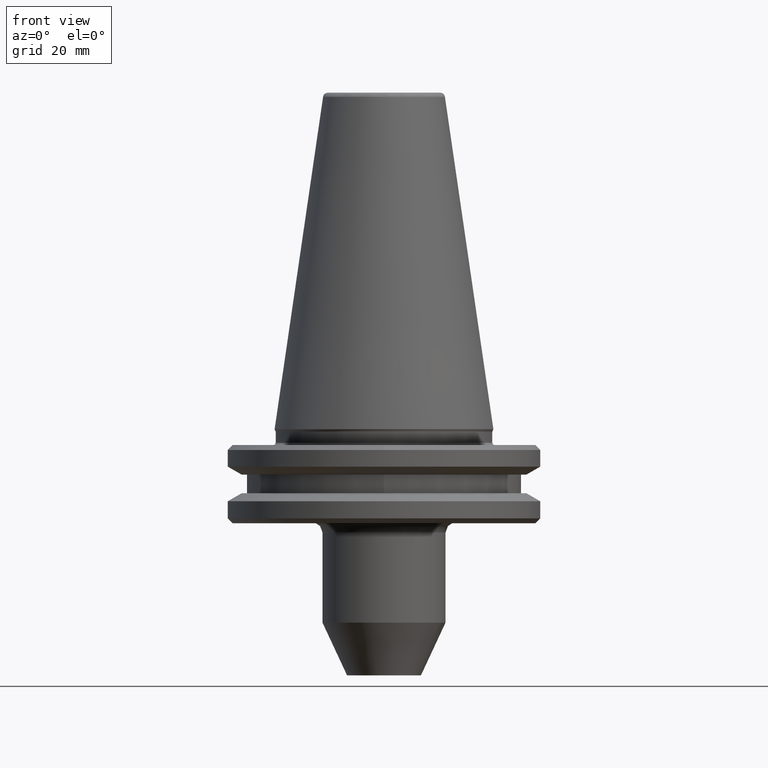
[diagram: clean part render]
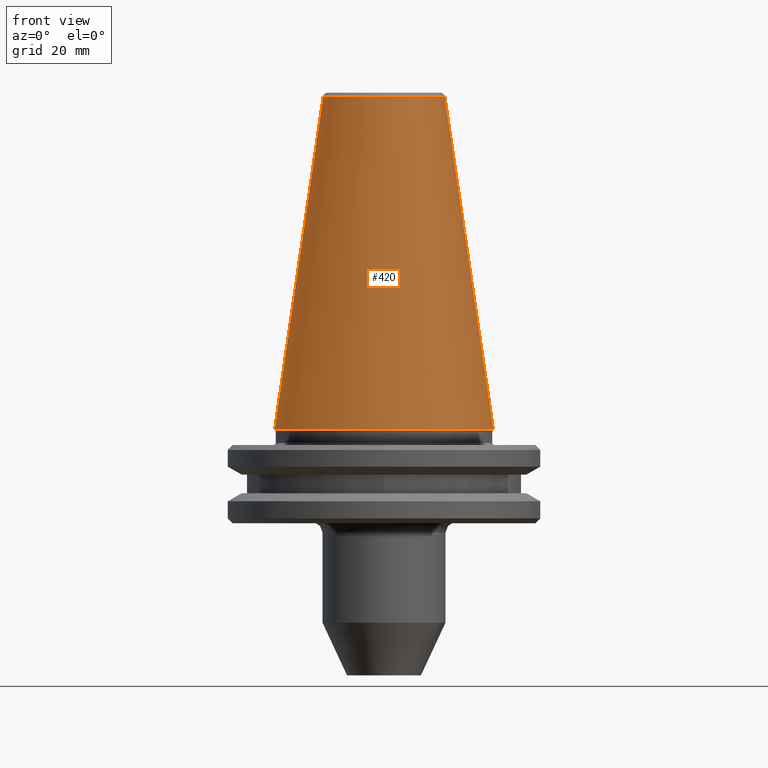
[diagram: same view with one face highlighted and labeled with its STEP entity id]
A machine part, front view. The second image highlights one B-rep face of the part: STEP entity #420.
In plain terms, the highlighted conical surface has half-angle 8.297 deg.
Its self-contained STEP definition (entity closure, byte-faithful):
#19 = VERTEX_POINT ( 'NONE', #299 ) ;
#37 = VERTEX_POINT ( 'NONE', #1121 ) ;
#40 = EDGE_LOOP ( 'NONE', ( #315, #890, #592, #201 ) ) ;
#67 = CARTESIAN_POINT ( 'NONE',  ( 12.37469537590452100, -2.855354478374084000E-009, 67.54430822699950500 ) ) ;
#137 = VECTOR ( 'NONE', #869, 1000.000000000000100 ) ;
#139 = AXIS2_PLACEMENT_3D ( 'NONE', #1277, #1270, #1268 ) ;
#148 = EDGE_CURVE ( 'NONE', #351, #37, #1304, .T. ) ;
#151 = DIRECTION ( 'NONE',  ( 0.0000000000000000000, 0.0000000000000000000, -1.000000000000000000 ) ) ;
#196 = EDGE_CURVE ( 'NONE', #351, #352, #1193, .T. ) ;
#201 = ORIENTED_EDGE ( 'NONE', *, *, #675, .T. ) ;
#234 = CARTESIAN_POINT ( 'NONE',  ( -12.37469537590595100, -5.555843992514513000E-010, 67.54430822698967100 ) ) ;
#237 = FACE_OUTER_BOUND ( 'NONE', #40, .T. ) ;
#262 = CIRCLE ( 'NONE', #292, 22.22499999999999400 ) ;
#292 = AXIS2_PLACEMENT_3D ( 'NONE', #736, #733, #727 ) ;
#299 = CARTESIAN_POINT ( 'NONE',  ( -22.22499999999999800, 2.721777511104992500E-015, 0.0000000000000000000 ) ) ;
#315 = ORIENTED_EDGE ( 'NONE', *, *, #148, .F. ) ;
#351 = VERTEX_POINT ( 'NONE', #67 ) ;
#352 = VERTEX_POINT ( 'NONE', #234 ) ;
#381 = AXIS2_PLACEMENT_3D ( 'NONE', #551, #151, #1300 ) ;
#420 = ADVANCED_FACE ( 'NONE', ( #237 ), #968, .T. ) ;
#543 = DIRECTION ( 'NONE',  ( 0.1443082272694599400, 1.767266086161729200E-017, -0.9895327864918603800 ) ) ;
#551 = CARTESIAN_POINT ( 'NONE',  ( 0.0000000000000000000, 0.0000000000000000000, 67.54430822701309000 ) ) ;
#565 = EDGE_CURVE ( 'NONE', #352, #19, #880, .T. ) ;
#592 = ORIENTED_EDGE ( 'NONE', *, *, #565, .T. ) ;
#675 = EDGE_CURVE ( 'NONE', #19, #37, #262, .T. ) ;
#727 = DIRECTION ( 'NONE',  ( -1.000000000000000000, 0.0000000000000000000, 0.0000000000000000000 ) ) ;
#733 = DIRECTION ( 'NONE',  ( -0.0000000000000000000, -0.0000000000000000000, 1.000000000000000000 ) ) ;
#736 = CARTESIAN_POINT ( 'NONE',  ( 0.0000000000000000000, 0.0000000000000000000, 0.0000000000000000000 ) ) ;
#787 = CARTESIAN_POINT ( 'NONE',  ( 22.22499999999999400, 2.721777511104992100E-015, 0.0000000000000000000 ) ) ;
#857 = CARTESIAN_POINT ( 'NONE',  ( -22.22499999999999400, 0.0000000000000000000, 0.0000000000000000000 ) ) ;
#869 = DIRECTION ( 'NONE',  ( -0.1443082272694599400, 0.0000000000000000000, -0.9895327864918603800 ) ) ;
#880 = LINE ( 'NONE', #857, #137 ) ;
#890 = ORIENTED_EDGE ( 'NONE', *, *, #196, .T. ) ;
#952 = VECTOR ( 'NONE', #543, 1000.000000000000100 ) ;
#968 = CONICAL_SURFACE ( 'NONE', #139, 22.22499999999999400, 0.1448138465495947800 ) ;
#1121 = CARTESIAN_POINT ( 'NONE',  ( 22.22499999999999800, 0.0000000000000000000, 0.0000000000000000000 ) ) ;
#1193 = CIRCLE ( 'NONE', #381, 12.37469537599809200 ) ;
#1268 = DIRECTION ( 'NONE',  ( -1.000000000000000000, 0.0000000000000000000, 0.0000000000000000000 ) ) ;
#1270 = DIRECTION ( 'NONE',  ( 0.0000000000000000000, 0.0000000000000000000, -1.000000000000000000 ) ) ;
#1277 = CARTESIAN_POINT ( 'NONE',  ( 0.0000000000000000000, 0.0000000000000000000, 0.0000000000000000000 ) ) ;
#1300 = DIRECTION ( 'NONE',  ( -1.000000000000000000, 0.0000000000000000000, 0.0000000000000000000 ) ) ;
#1304 = LINE ( 'NONE', #787, #952 ) ;